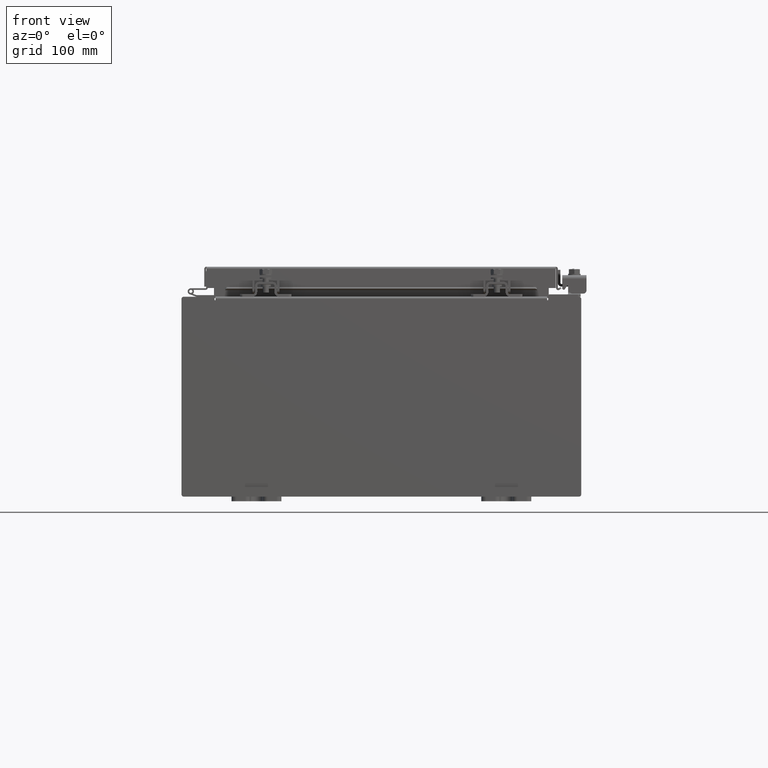
[diagram: clean part render]
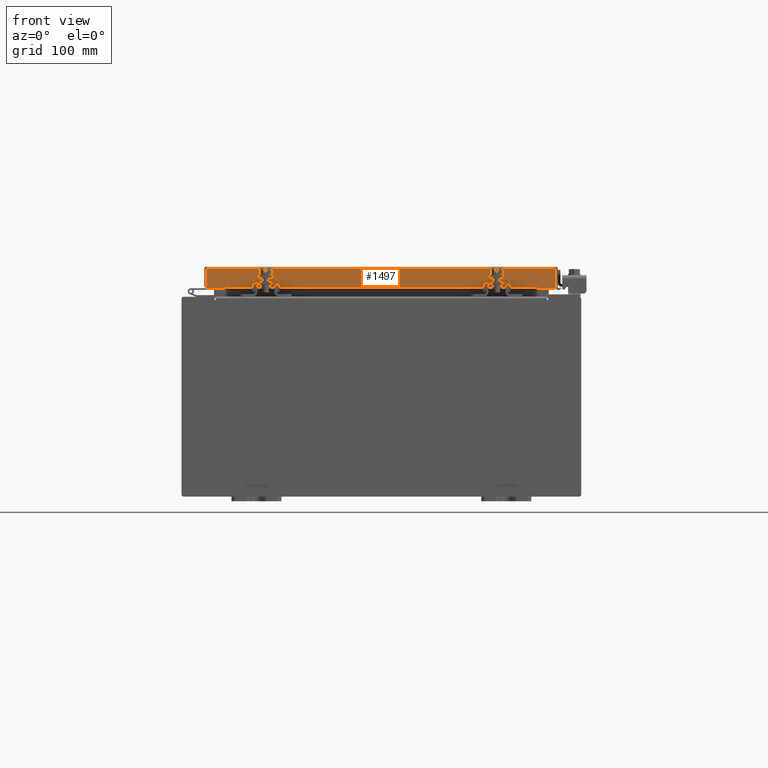
[diagram: same view with one face highlighted and labeled with its STEP entity id]
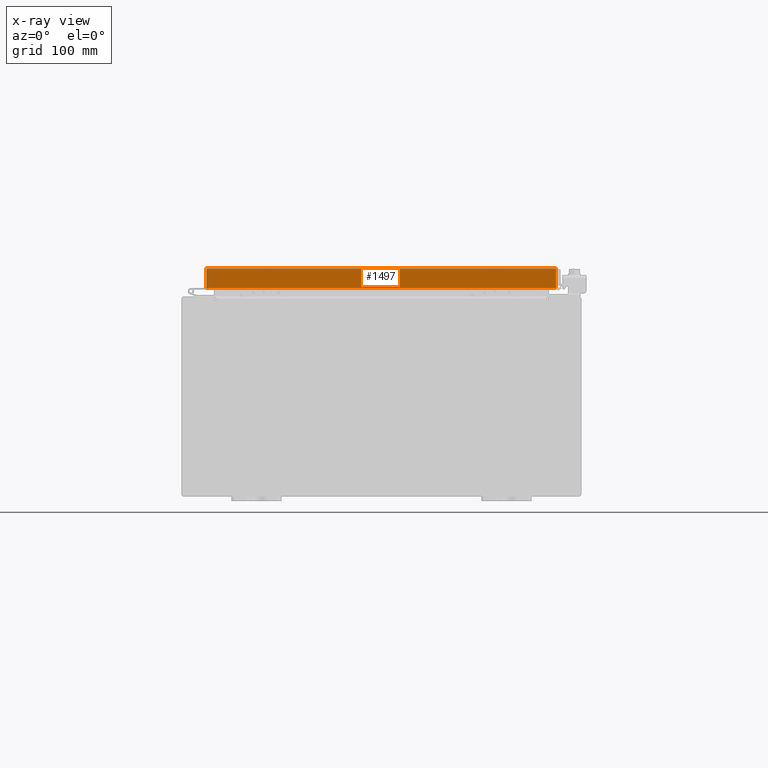
[diagram: x-ray of the same camera — body ghosted, the highlighted face saturated]
A machine part, front view. The second image highlights one B-rep face of the part: STEP entity #1497.
The next image is the same camera in x-ray: the body ghosted, the highlighted face saturated — about 0% of this face is hidden behind the body in this view.
In plain terms, the highlighted planar face has unit normal (-0, 1, -0).
Its self-contained STEP definition (entity closure, byte-faithful):
#1228 = CARTESIAN_POINT ( 'NONE',  ( 6.989157864376271500, -9.094000000000001200, -0.8499999999999996400 ) ) ;
#1497 = ADVANCED_FACE ( 'NONE', ( #1935 ), #4071, .F. ) ;
#1887 = DIRECTION ( 'NONE',  ( -1.000000000000000000, 0.0000000000000000000, 0.0000000000000000000 ) ) ;
#1935 = FACE_OUTER_BOUND ( 'NONE', #22818, .T. ) ;
#3435 = DIRECTION ( 'NONE',  ( -1.000000000000000000, -4.379057701015054300E-047, 1.254380613084042800E-016 ) ) ;
#4071 = PLANE ( 'NONE',  #19217 ) ;
#4514 = ORIENTED_EDGE ( 'NONE', *, *, #10570, .F. ) ;
#5724 = CARTESIAN_POINT ( 'NONE',  ( 7.078000000000002100, -9.093999999999999400, -0.08770000000000007000 ) ) ;
#5992 = EDGE_CURVE ( 'NONE', #26911, #25173, #28848, .T. ) ;
#6316 = EDGE_CURVE ( 'NONE', #26911, #10284, #8205, .T. ) ;
#6370 = DIRECTION ( 'NONE',  ( 0.0000000000000000000, 2.818880942772360100E-015, 1.000000000000000000 ) ) ;
#7775 = DIRECTION ( 'NONE',  ( -0.0000000000000000000, -2.818880942772360100E-015, -1.000000000000000000 ) ) ;
#8062 = LINE ( 'NONE', #12247, #20151 ) ;
#8133 = CARTESIAN_POINT ( 'NONE',  ( 7.078000000000002100, -9.094000000000001200, -0.8499999999999996400 ) ) ;
#8205 = LINE ( 'NONE', #27608, #20292 ) ;
#9207 = EDGE_CURVE ( 'NONE', #23337, #20044, #16489, .T. ) ;
#10284 = VERTEX_POINT ( 'NONE', #14620 ) ;
#10570 = EDGE_CURVE ( 'NONE', #20044, #15595, #17546, .T. ) ;
#10930 = EDGE_CURVE ( 'NONE', #15595, #10284, #24910, .T. ) ;
#11721 = DIRECTION ( 'NONE',  ( 0.0000000000000000000, -2.818880942772360100E-015, -1.000000000000000000 ) ) ;
#12247 = CARTESIAN_POINT ( 'NONE',  ( 6.989157864376271500, -9.093999999999999400, -0.07469999999999978000 ) ) ;
#12883 = VECTOR ( 'NONE', #19461, 39.37007874015748100 ) ;
#14620 = CARTESIAN_POINT ( 'NONE',  ( -6.989157864376266200, -9.094000000000001200, -0.8499999999999978700 ) ) ;
#15595 = VERTEX_POINT ( 'NONE', #25697 ) ;
#16051 = VECTOR ( 'NONE', #21612, 39.37007874015748100 ) ;
#16489 = LINE ( 'NONE', #19344, #22494 ) ;
#17546 = LINE ( 'NONE', #29126, #23516 ) ;
#17625 = CARTESIAN_POINT ( 'NONE',  ( 3.215592570974079100E-030, -9.093999999999999400, 2.589571694958342300E-014 ) ) ;
#19217 = AXIS2_PLACEMENT_3D ( 'NONE', #17625, #19986, #6370 ) ;
#19344 = CARTESIAN_POINT ( 'NONE',  ( 7.078000000000002100, -9.094000000000001200, -0.8499999999999996400 ) ) ;
#19461 = DIRECTION ( 'NONE',  ( -1.000000000000000000, -4.379057701015054300E-047, 1.254380613084042800E-016 ) ) ;
#19986 = DIRECTION ( 'NONE',  ( -3.535949605205717500E-031, 1.000000000000000000, -2.818880942772360100E-015 ) ) ;
#20044 = VERTEX_POINT ( 'NONE', #24441 ) ;
#20151 = VECTOR ( 'NONE', #7775, 39.37007874015748100 ) ;
#20259 = EDGE_CURVE ( 'NONE', #25173, #23337, #8062, .T. ) ;
#20292 = VECTOR ( 'NONE', #11721, 39.37007874015748100 ) ;
#20966 = ORIENTED_EDGE ( 'NONE', *, *, #6316, .T. ) ;
#21067 = ORIENTED_EDGE ( 'NONE', *, *, #10930, .F. ) ;
#21612 = DIRECTION ( 'NONE',  ( 1.000000000000000000, 3.535949605205718300E-031, -9.638176865770766400E-046 ) ) ;
#22066 = CARTESIAN_POINT ( 'NONE',  ( -6.989157864376266200, -9.093999999999999400, -0.08770000000000007000 ) ) ;
#22494 = VECTOR ( 'NONE', #3435, 39.37007874015748100 ) ;
#22818 = EDGE_LOOP ( 'NONE', ( #28116, #20966, #21067, #4514, #26579, #25890 ) ) ;
#23337 = VERTEX_POINT ( 'NONE', #1228 ) ;
#23516 = VECTOR ( 'NONE', #1887, 39.37007874015748100 ) ;
#24441 = CARTESIAN_POINT ( 'NONE',  ( 6.239157864376270600, -9.093999999999997600, -0.8500000000000007500 ) ) ;
#24910 = LINE ( 'NONE', #8133, #12883 ) ;
#25173 = VERTEX_POINT ( 'NONE', #28945 ) ;
#25697 = CARTESIAN_POINT ( 'NONE',  ( -6.239157864376266200, -9.093999999999997600, -0.8500000000000007500 ) ) ;
#25890 = ORIENTED_EDGE ( 'NONE', *, *, #20259, .F. ) ;
#26579 = ORIENTED_EDGE ( 'NONE', *, *, #9207, .F. ) ;
#26911 = VERTEX_POINT ( 'NONE', #22066 ) ;
#27608 = CARTESIAN_POINT ( 'NONE',  ( -6.989157864376266200, -9.093999999999999400, 2.589571694958342300E-014 ) ) ;
#28116 = ORIENTED_EDGE ( 'NONE', *, *, #5992, .F. ) ;
#28848 = LINE ( 'NONE', #5724, #16051 ) ;
#28945 = CARTESIAN_POINT ( 'NONE',  ( 6.989157864376271500, -9.093999999999999400, -0.08770000000000007000 ) ) ;
#29126 = CARTESIAN_POINT ( 'NONE',  ( 6.239157864376270600, -9.093999999999997600, -0.8500000000000007500 ) ) ;